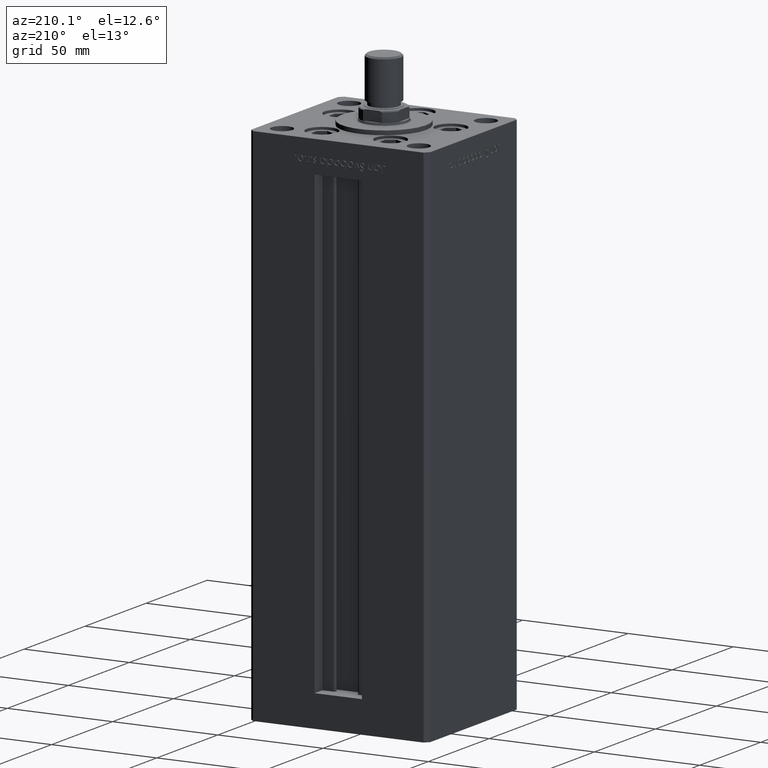
[diagram: clean part render]
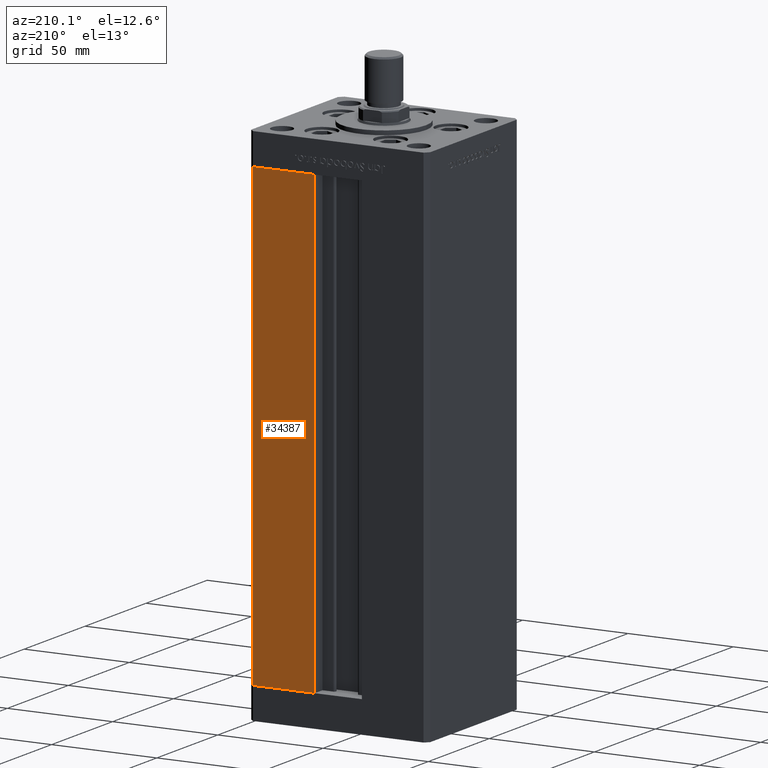
[diagram: same view with one face highlighted and labeled with its STEP entity id]
A machine part, auxiliary view. The second image highlights one B-rep face of the part: STEP entity #34387.
In plain terms, the highlighted planar face has unit normal (-0, -1, 0).
Its self-contained STEP definition (entity closure, byte-faithful):
#487 = DIRECTION ( 'NONE',  ( -0.000000000000000000, -0.000000000000000000, -1.000000000000000000 ) ) ;
#2679 = ORIENTED_EDGE ( 'NONE', *, *, #31050, .T. ) ;
#3690 = CARTESIAN_POINT ( 'NONE',  ( 40.50000000000000000, 37.50000000000000711, 218.5000000000000000 ) ) ;
#4837 = VERTEX_POINT ( 'NONE', #9508 ) ;
#5310 = CARTESIAN_POINT ( 'NONE',  ( 40.50000000000000000, 37.50000000000000711, 218.5000000000000000 ) ) ;
#5480 = EDGE_CURVE ( 'NONE', #19297, #4837, #49342, .T. ) ;
#6871 = VERTEX_POINT ( 'NONE', #7899 ) ;
#7899 = CARTESIAN_POINT ( 'NONE',  ( 40.50000000000000000, 37.50000000000000711, 0.000000000000000000 ) ) ;
#8530 = VECTOR ( 'NONE', #18325, 1000.000000000000000 ) ;
#9508 = CARTESIAN_POINT ( 'NONE',  ( 11.24999999999999289, 37.50000000000000000, 218.5000000000000000 ) ) ;
#16211 = VECTOR ( 'NONE', #47798, 1000.000000000000000 ) ;
#16365 = AXIS2_PLACEMENT_3D ( 'NONE', #27455, #31935, #35664 ) ;
#17787 = VERTEX_POINT ( 'NONE', #5310 ) ;
#18325 = DIRECTION ( 'NONE',  ( -1.000000000000000000, 2.372271420139223331E-16, 0.000000000000000000 ) ) ;
#18912 = LINE ( 'NONE', #35078, #16211 ) ;
#19297 = VERTEX_POINT ( 'NONE', #45805 ) ;
#20924 = ORIENTED_EDGE ( 'NONE', *, *, #45165, .T. ) ;
#21244 = DIRECTION ( 'NONE',  ( -0.000000000000000000, -0.000000000000000000, 1.000000000000000000 ) ) ;
#22718 = VECTOR ( 'NONE', #487, 1000.000000000000000 ) ;
#24439 = CARTESIAN_POINT ( 'NONE',  ( 11.25000000000000000, 37.50000000000000000, 0.000000000000000000 ) ) ;
#25521 = VECTOR ( 'NONE', #21244, 1000.000000000000000 ) ;
#26290 = LINE ( 'NONE', #42428, #8530 ) ;
#27141 = ORIENTED_EDGE ( 'NONE', *, *, #51875, .T. ) ;
#27455 = CARTESIAN_POINT ( 'NONE',  ( -11.25000000000000000, 37.50000000000000000, 218.5000000000000000 ) ) ;
#31050 = EDGE_CURVE ( 'NONE', #4837, #17787, #18912, .T. ) ;
#31935 = DIRECTION ( 'NONE',  ( -2.372271420139223824E-16, -1.000000000000000000, 0.000000000000000000 ) ) ;
#32451 = FACE_OUTER_BOUND ( 'NONE', #48478, .T. ) ;
#34387 = ADVANCED_FACE ( 'NONE', ( #32451 ), #39636, .F. ) ;
#35078 = CARTESIAN_POINT ( 'NONE',  ( -11.25000000000000000, 37.50000000000000000, 218.5000000000000000 ) ) ;
#35664 = DIRECTION ( 'NONE',  ( 1.000000000000000000, -2.372271420139223824E-16, 0.000000000000000000 ) ) ;
#39636 = PLANE ( 'NONE',  #16365 ) ;
#42428 = CARTESIAN_POINT ( 'NONE',  ( -11.25000000000000000, 37.50000000000000000, 0.000000000000000000 ) ) ;
#44472 = LINE ( 'NONE', #3690, #22718 ) ;
#44889 = ORIENTED_EDGE ( 'NONE', *, *, #5480, .T. ) ;
#45165 = EDGE_CURVE ( 'NONE', #17787, #6871, #44472, .T. ) ;
#45805 = CARTESIAN_POINT ( 'NONE',  ( 11.25000000000000000, 37.50000000000000000, 0.000000000000000000 ) ) ;
#47798 = DIRECTION ( 'NONE',  ( 1.000000000000000000, 0.000000000000000000, 0.000000000000000000 ) ) ;
#48478 = EDGE_LOOP ( 'NONE', ( #27141, #44889, #2679, #20924 ) ) ;
#49342 = LINE ( 'NONE', #24439, #25521 ) ;
#51875 = EDGE_CURVE ( 'NONE', #6871, #19297, #26290, .T. ) ;